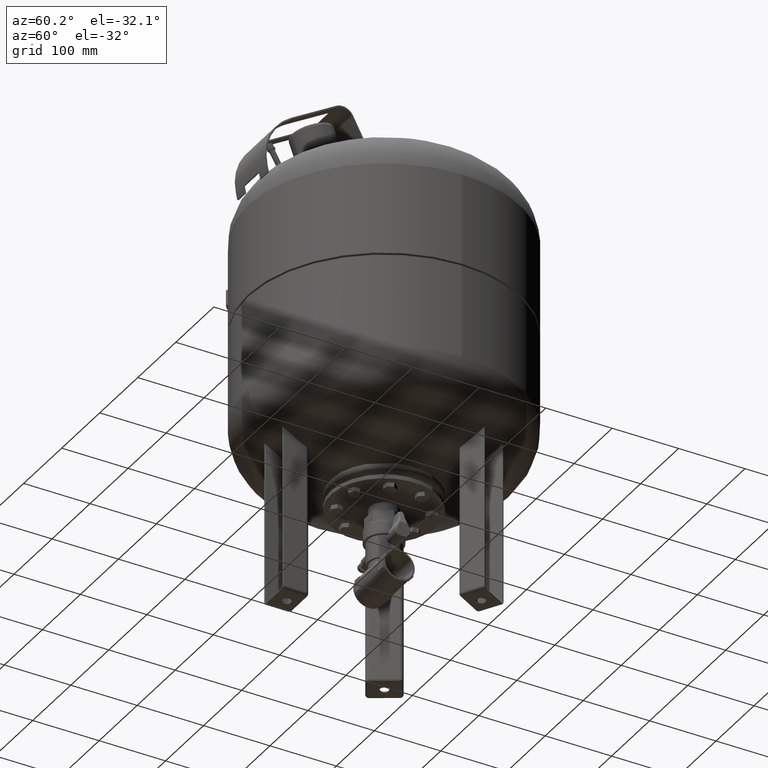
[diagram: clean part render]
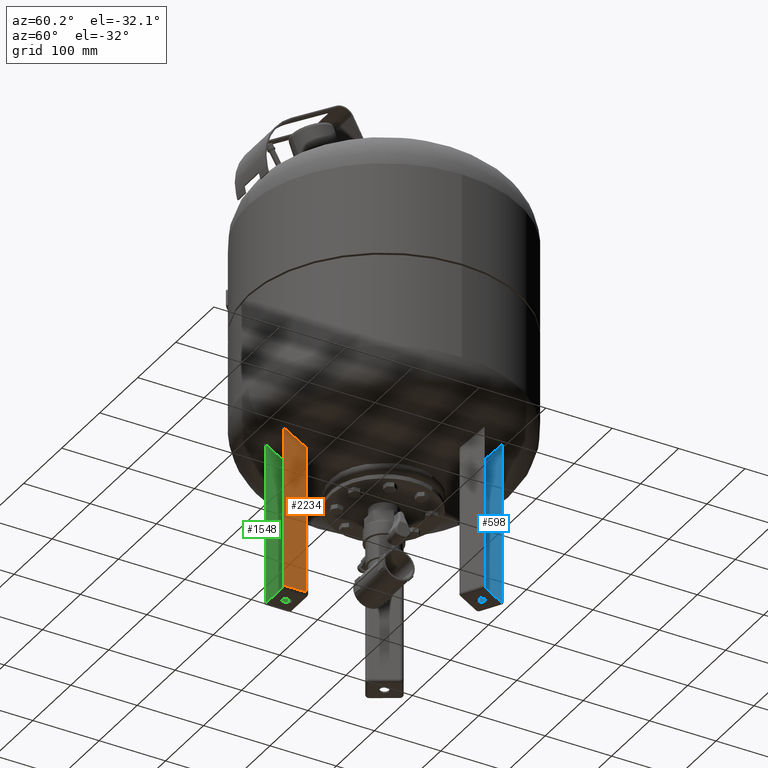
[diagram: same view with three faces highlighted in distinct colors, each labeled with its STEP entity id]
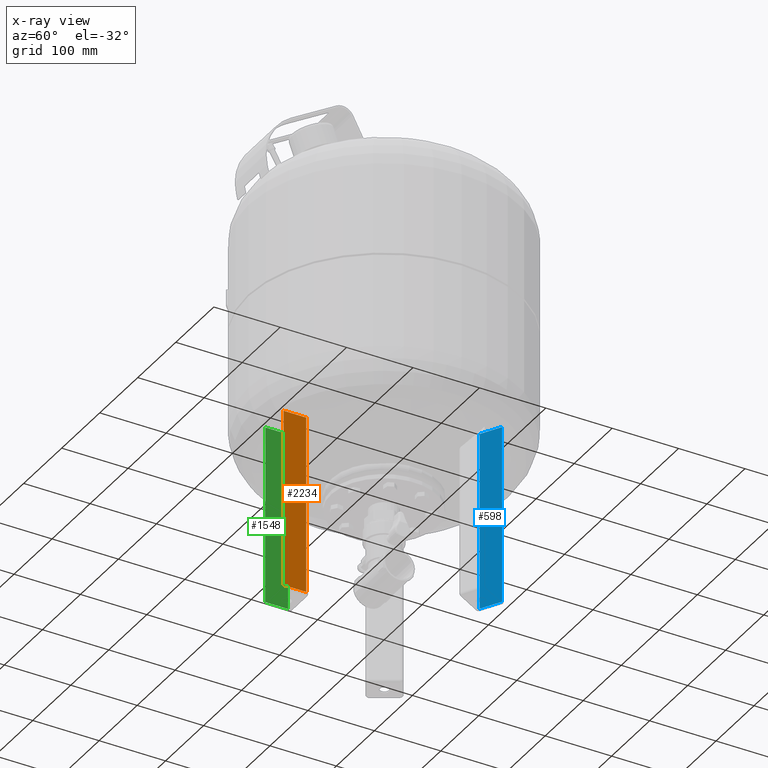
[diagram: x-ray of the same camera — body ghosted, the three highlighted faces saturated]
A machine part, auxiliary view with three faces highlighted in distinct colors.
The next image is the same camera in x-ray (body ghosted, the three faces saturated) — at least one of them is partly hidden behind the body in this view.
Their STEP definitions:

[orange] entity #2234 — the highlighted planar face has unit normal (1, 0, 0).
#1332=CARTESIAN_POINT('',(24.999999999999996,-165.500000000000000,274.0));
#1333=VERTEX_POINT('',#1332);
#1341=CARTESIAN_POINT('',(24.999999999999996,-131.500000000000000,274.0));
#1342=VERTEX_POINT('',#1341);
#1343=CARTESIAN_POINT('',(24.999999999999996,-131.500000000000000,274.0));
#1344=DIRECTION('',(0.0,-1.0,0.0));
#1345=VECTOR('',#1344,34.0);
#1346=LINE('',#1343,#1345);
#1347=EDGE_CURVE('',#1342,#1333,#1346,.T.);
#1777=CARTESIAN_POINT('',(25.0,-165.500000000000000,5.000000000000004));
#1778=VERTEX_POINT('',#1777);
#1805=CARTESIAN_POINT('',(25.0,-165.500000000000000,5.000000000000004));
#1806=DIRECTION('',(0.0,0.0,1.0));
#1807=VECTOR('',#1806,269.0);
#1808=LINE('',#1805,#1807);
#1809=EDGE_CURVE('',#1778,#1333,#1808,.T.);
#1969=CARTESIAN_POINT('',(25.000000000000004,-131.500000000000000,5.000000000000004));
#1970=VERTEX_POINT('',#1969);
#1978=CARTESIAN_POINT('',(25.000000000000004,-131.500000000000000,5.000000000000004));
#1979=DIRECTION('',(0.0,-1.0,0.0));
#1980=VECTOR('',#1979,34.0);
#1981=LINE('',#1978,#1980);
#1982=EDGE_CURVE('',#1970,#1778,#1981,.T.);
#2104=CARTESIAN_POINT('',(25.000000000000004,-131.500000000000000,5.000000000000004));
#2105=DIRECTION('',(0.0,0.0,1.0));
#2106=VECTOR('',#2105,269.0);
#2107=LINE('',#2104,#2106);
#2108=EDGE_CURVE('',#1970,#1342,#2107,.T.);
#2223=CARTESIAN_POINT('',(25.000000000000004,-126.500000000000000,4.592425E-015));
#2224=DIRECTION('',(1.0,0.0,0.0));
#2225=DIRECTION('',(0.0,1.0,0.0));
#2226=AXIS2_PLACEMENT_3D('',#2223,#2224,#2225);
#2227=PLANE('',#2226);
#2228=ORIENTED_EDGE('',*,*,#1809,.F.);
#2229=ORIENTED_EDGE('',*,*,#1982,.F.);
#2230=ORIENTED_EDGE('',*,*,#2108,.T.);
#2231=ORIENTED_EDGE('',*,*,#1347,.T.);
#2232=EDGE_LOOP('',(#2228,#2229,#2230,#2231));
#2233=FACE_OUTER_BOUND('',#2232,.T.);
#2234=ADVANCED_FACE('',(#2233),#2227,.T.);

[blue] entity #598 — the highlighted planar face has unit normal (-0.5, 0.866, 0).
#216=CARTESIAN_POINT('',(102.632340597653690,85.235571585149842,274.0));
#217=VERTEX_POINT('',#216);
#225=CARTESIAN_POINT('',(132.077204326324620,102.235571585149840,274.0));
#226=VERTEX_POINT('',#225);
#227=CARTESIAN_POINT('',(132.077204326324620,102.235571585149840,274.0));
#228=DIRECTION('',(-0.866025403784439,-0.500000000000000,0.0));
#229=VECTOR('',#228,34.000000000000007);
#230=LINE('',#227,#229);
#231=EDGE_CURVE('',#226,#217,#230,.T.);
#316=CARTESIAN_POINT('',(132.077204326324620,102.235571585149840,4.500000000000004));
#317=VERTEX_POINT('',#316);
#318=CARTESIAN_POINT('',(132.077204326324620,102.235571585149840,274.0));
#319=DIRECTION('',(0.0,0.0,-1.0));
#320=VECTOR('',#319,269.500000000000000);
#321=LINE('',#318,#320);
#322=EDGE_CURVE('',#226,#317,#321,.T.);
#563=CARTESIAN_POINT('',(102.632340597653690,85.235571585149842,4.500000000000004));
#564=VERTEX_POINT('',#563);
#565=CARTESIAN_POINT('',(132.077204326324620,102.235571585149840,4.500000000000004));
#566=DIRECTION('',(-0.866025403784439,-0.500000000000000,0.0));
#567=VECTOR('',#566,34.000000000000007);
#568=LINE('',#565,#567);
#569=EDGE_CURVE('',#317,#564,#568,.T.);
#582=CARTESIAN_POINT('',(100.467277088192590,83.985571585149842,2.000000000000004));
#583=DIRECTION('',(-0.500000000000000,0.866025403784439,1.836970E-016));
#584=DIRECTION('',(-0.866025403784439,-0.500000000000000,-1.019723E-032));
#585=AXIS2_PLACEMENT_3D('',#582,#583,#584);
#586=PLANE('',#585);
#587=ORIENTED_EDGE('',*,*,#322,.F.);
#588=ORIENTED_EDGE('',*,*,#231,.T.);
#589=CARTESIAN_POINT('',(102.632340597653690,85.235571585149842,4.500000000000004));
#590=DIRECTION('',(0.0,0.0,1.0));
#591=VECTOR('',#590,269.500000000000000);
#592=LINE('',#589,#591);
#593=EDGE_CURVE('',#564,#217,#592,.T.);
#594=ORIENTED_EDGE('',*,*,#593,.F.);
#595=ORIENTED_EDGE('',*,*,#569,.F.);
#596=EDGE_LOOP('',(#587,#588,#594,#595));
#597=FACE_OUTER_BOUND('',#596,.T.);
#598=ADVANCED_FACE('',(#597),#586,.F.);

[green] entity #1548 — the highlighted planar face has unit normal (-1, 0, 0).
#1264=CARTESIAN_POINT('',(-22.500000000000007,-165.500000000000000,274.0));
#1265=VERTEX_POINT('',#1264);
#1273=CARTESIAN_POINT('',(-22.500000000000004,-131.500000000000000,274.0));
#1274=VERTEX_POINT('',#1273);
#1275=CARTESIAN_POINT('',(-22.500000000000004,-131.500000000000000,274.0));
#1276=DIRECTION('',(0.0,-1.0,0.0));
#1277=VECTOR('',#1276,34.0);
#1278=LINE('',#1275,#1277);
#1279=EDGE_CURVE('',#1274,#1265,#1278,.T.);
#1464=CARTESIAN_POINT('',(-22.500000000000004,-165.500000000000000,4.499999999999996));
#1465=VERTEX_POINT('',#1464);
#1515=CARTESIAN_POINT('',(-22.500000000000004,-165.500000000000000,4.499999999999996));
#1516=DIRECTION('',(0.0,0.0,1.0));
#1517=VECTOR('',#1516,269.500000000000000);
#1518=LINE('',#1515,#1517);
#1519=EDGE_CURVE('',#1465,#1265,#1518,.T.);
#1525=CARTESIAN_POINT('',(-22.500000000000000,-166.500000000000000,1.999999999999996));
#1526=DIRECTION('',(-1.0,0.0,0.0));
#1527=DIRECTION('',(0.0,-1.0,0.0));
#1528=AXIS2_PLACEMENT_3D('',#1525,#1526,#1527);
#1529=PLANE('',#1528);
#1530=ORIENTED_EDGE('',*,*,#1519,.F.);
#1531=CARTESIAN_POINT('',(-22.500000000000000,-131.500000000000000,4.499999999999996));
#1532=VERTEX_POINT('',#1531);
#1533=CARTESIAN_POINT('',(-22.500000000000000,-131.500000000000000,4.499999999999996));
#1534=DIRECTION('',(0.0,-1.0,0.0));
#1535=VECTOR('',#1534,34.0);
#1536=LINE('',#1533,#1535);
#1537=EDGE_CURVE('',#1532,#1465,#1536,.T.);
#1538=ORIENTED_EDGE('',*,*,#1537,.F.);
#1539=CARTESIAN_POINT('',(-22.500000000000004,-131.500000000000000,274.0));
#1540=DIRECTION('',(0.0,0.0,-1.0));
#1541=VECTOR('',#1540,269.500000000000000);
#1542=LINE('',#1539,#1541);
#1543=EDGE_CURVE('',#1274,#1532,#1542,.T.);
#1544=ORIENTED_EDGE('',*,*,#1543,.F.);
#1545=ORIENTED_EDGE('',*,*,#1279,.T.);
#1546=EDGE_LOOP('',(#1530,#1538,#1544,#1545));
#1547=FACE_OUTER_BOUND('',#1546,.T.);
#1548=ADVANCED_FACE('',(#1547),#1529,.F.);